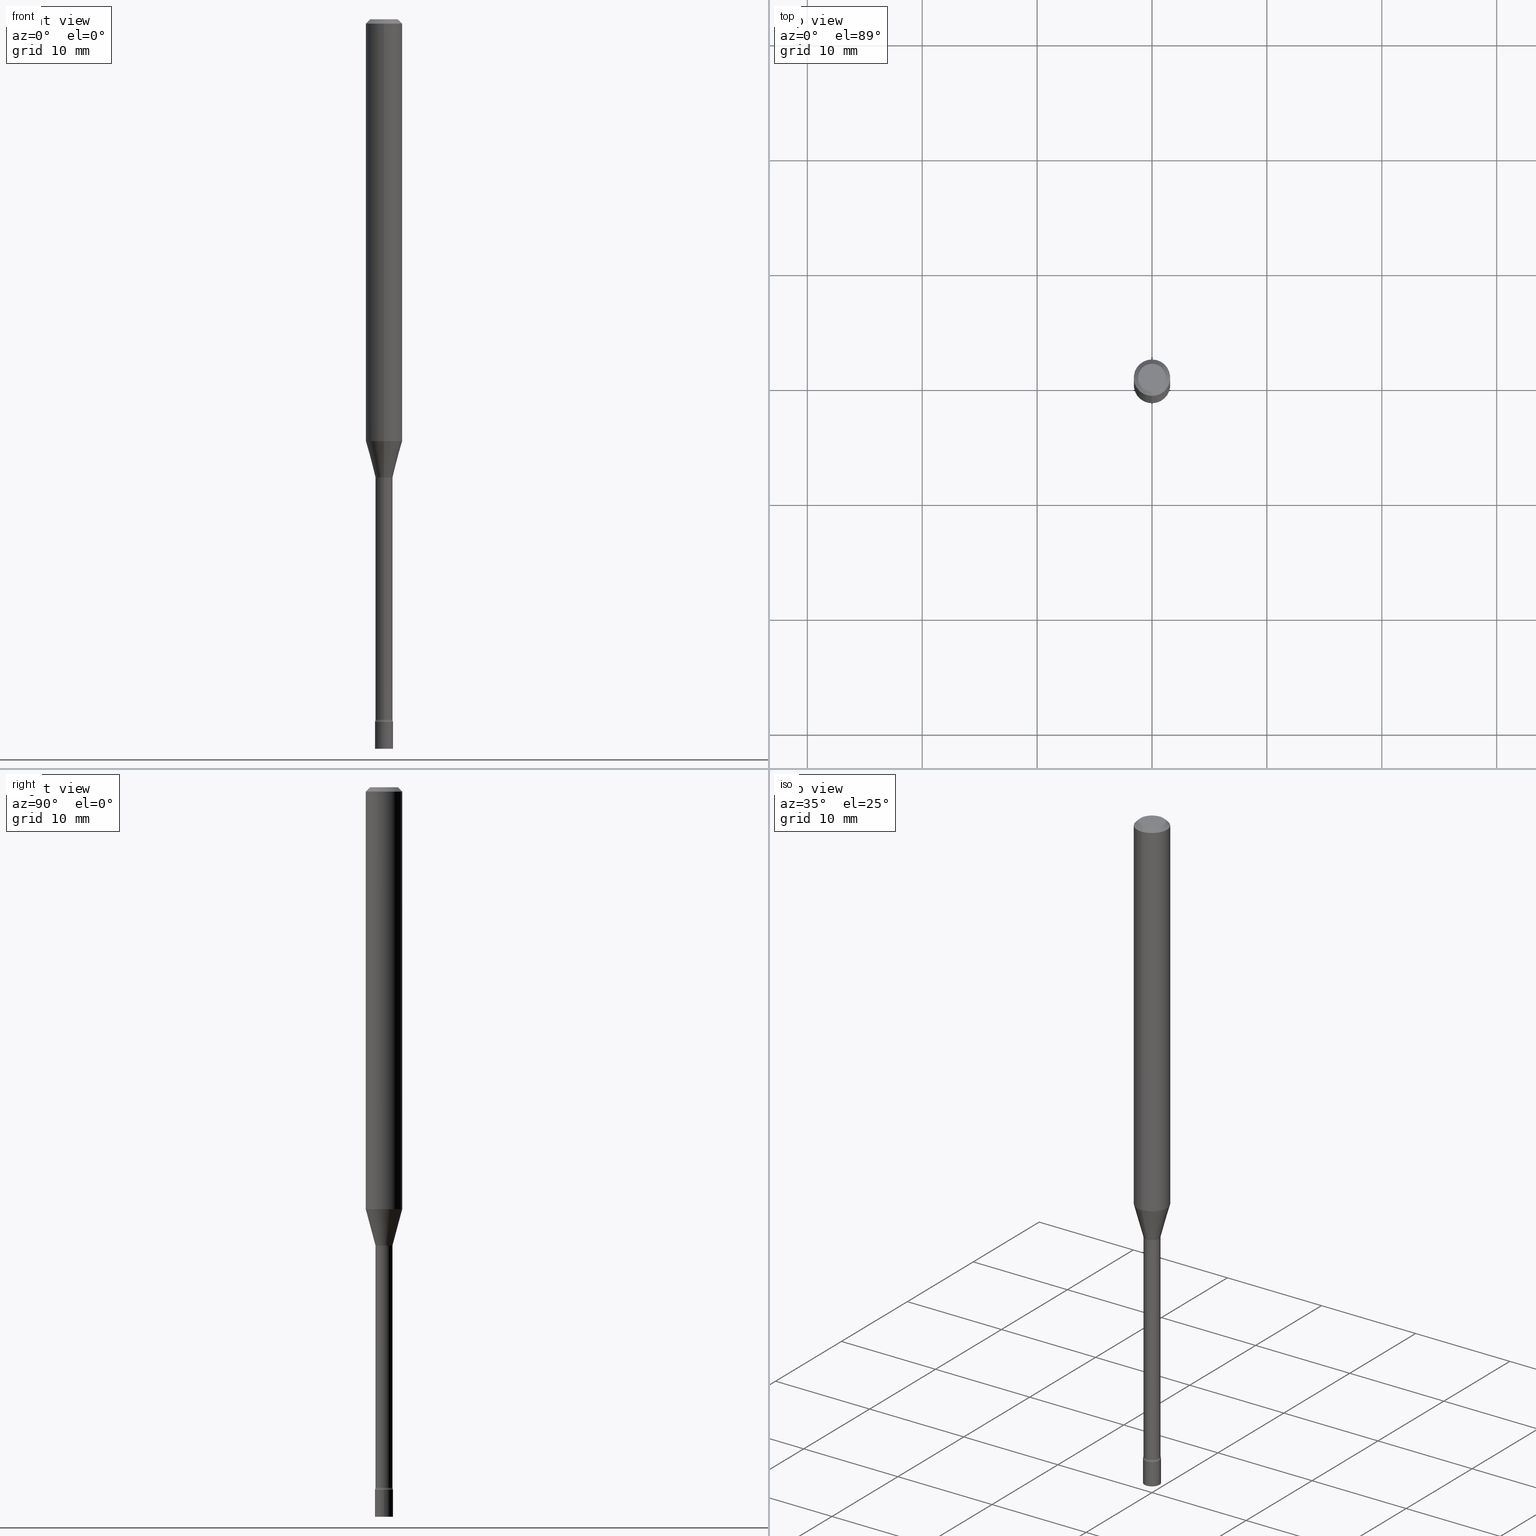
[diagram: canonical four-view strip — front | top / right | iso, engineering-drawing reading convention]
A machine part, canonical four-view strip (front | top / right | iso — engineering-drawing reading convention). The complete STEP part file that produces these views, byte-faithful:
ISO-10303-21;
HEADER;
FILE_DESCRIPTION (( 'STEP AP203' ),
    '1' );
FILE_NAME ('03629.STEP',
    '2024-03-08T22:13:02',
    ( '' ),
    ( '' ),
    'SwSTEP 2.0',
    'SolidWorks 2023',
    '' );
FILE_SCHEMA (( 'CONFIG_CONTROL_DESIGN' ));
ENDSEC;

DATA;
#1 = CARTESIAN_POINT ( 'NONE',  ( 4.440892098500625669E-16, 0.06250000000000000000, -2.182185064623508754E-16 ) ) ;
#2 = DIRECTION ( 'NONE',  ( -2.445458496151855897E-29, 3.491496103397614401E-15, 1.000000000000000000 ) ) ;
#3 = CYLINDRICAL_SURFACE ( 'NONE', #501, 0.03099999999999999978 ) ;
#4 = CIRCLE ( 'NONE', #493, 0.06250000000000000000 ) ;
#5 = TOROIDAL_SURFACE ( 'NONE', #70, 0.04415000000000000174, 0.01500000000000002373 ) ;
#6 = ADVANCED_FACE ( 'NONE', ( #284 ), #3, .T. ) ;
#7 = EDGE_LOOP ( 'NONE', ( #408, #164, #165, #506 ) ) ;
#8 = CYLINDRICAL_SURFACE ( 'NONE', #518, 0.02915000000000006128 ) ;
#9 = ADVANCED_FACE ( 'NONE', ( #402 ), #36, .T. ) ;
#10 = DIRECTION ( 'NONE',  ( 1.000000000000000000, -7.105427357601001070E-15, 4.926315689355726183E-29 ) ) ;
#11 = CYLINDRICAL_SURFACE ( 'NONE', #474, 0.06250000000000000000 ) ;
#12 = DIRECTION ( 'NONE',  ( 1.839019923739594793E-15, 0.2588190451025241812, 0.9659258262890673130 ) ) ;
#13 = CIRCLE ( 'NONE', #235, 0.06250000000000000000 ) ;
#14 = DIRECTION ( 'NONE',  ( -2.445468806185136597E-29, 3.491481338843145583E-15, 1.000000000000000000 ) ) ;
#15 = APPROVAL_PERSON_ORGANIZATION ( #67, #469, #507 ) ;
#16 = CARTESIAN_POINT ( 'NONE',  ( 2.071232074741282125E-16, 0.02914999999999451016, -1.571974787463811030 ) ) ;
#17 = CARTESIAN_POINT ( 'NONE',  ( 5.886218600237516879E-29, -8.404031120878058202E-15, -2.407000000000000028 ) ) ;
#18 = EDGE_CURVE ( 'NONE', #111, #105, #350, .T. ) ;
#19 = VERTEX_POINT ( 'NONE', #245 ) ;
#20 = AXIS2_PLACEMENT_3D ( 'NONE', #291, #370, #448 ) ;
#21 = ORIENTED_EDGE ( 'NONE', *, *, #353, .F. ) ;
#22 = SECURITY_CLASSIFICATION ( '', '', #460 ) ;
#23 = PERSON_AND_ORGANIZATION ( #450, #159 ) ;
#24 = ORIENTED_EDGE ( 'NONE', *, *, #491, .T. ) ;
#25 = APPLICATION_PROTOCOL_DEFINITION ( 'international standard', 'config_control_design', 1994, #143 ) ;
#26 = ORIENTED_EDGE ( 'NONE', *, *, #344, .F. ) ;
#27 = ADVANCED_FACE ( 'NONE', ( #155 ), #358, .T. ) ;
#28 = ORIENTED_EDGE ( 'NONE', *, *, #344, .T. ) ;
#29 = APPROVAL_DATE_TIME ( #188, #469 ) ;
#30 = VECTOR ( 'NONE', #213, 39.37007874015748143 ) ;
#31 = EDGE_LOOP ( 'NONE', ( #101, #186, #72, #152 ) ) ;
#32 = EDGE_LOOP ( 'NONE', ( #404, #24, #238, #202 ) ) ;
#33 = ORIENTED_EDGE ( 'NONE', *, *, #179, .T. ) ;
#34 = ORIENTED_EDGE ( 'NONE', *, *, #391, .T. ) ;
#35 = ORIENTED_EDGE ( 'NONE', *, *, #401, .T. ) ;
#36 = CYLINDRICAL_SURFACE ( 'NONE', #436, 0.03099999999999999978 ) ;
#37 = VECTOR ( 'NONE', #172, 39.37007874015748143 ) ;
#38 = VERTEX_POINT ( 'NONE', #486 ) ;
#39 = DIRECTION ( 'NONE',  ( -6.982962677686265922E-15, -1.000000000000000000, 0.000000000000000000 ) ) ;
#40 = EDGE_LOOP ( 'NONE', ( #21, #296, #447, #461 ) ) ;
#41 = PLANE ( 'NONE',  #248 ) ;
#42 = CC_DESIGN_DATE_AND_TIME_ASSIGNMENT ( #509, #229, ( #22 ) ) ;
#43 = DESIGN_CONTEXT ( 'detailed design', #336, 'design' ) ;
#44 = EDGE_CURVE ( 'NONE', #438, #299, #405, .T. ) ;
#45 = AXIS2_PLACEMENT_3D ( 'NONE', #476, #197, #39 ) ;
#46 = AXIS2_PLACEMENT_3D ( 'NONE', #163, #398, #209 ) ;
#47 = PRODUCT_DEFINITION ( 'UNKNOWN', '', #184, #43 ) ;
#48 = CARTESIAN_POINT ( 'NONE',  ( 5.886243416487624138E-29, -8.403995582595451079E-15, -2.407000000000000028 ) ) ;
#49 = EDGE_LOOP ( 'NONE', ( #82, #307 ) ) ;
#50 = DIRECTION ( 'NONE',  ( -2.445458496151855897E-29, 3.491496103397614401E-15, 1.000000000000000000 ) ) ;
#51 = CARTESIAN_POINT ( 'NONE',  ( -2.071224423039628932E-16, -0.02966111260566946239, -1.568092501787273108 ) ) ;
#52 = CARTESIAN_POINT ( 'NONE',  ( 0.03099999999999999978, -8.945175190116139274E-15, -2.500000000000000000 ) ) ;
#53 = CARTESIAN_POINT ( 'NONE',  ( 2.107548809652071189E-16, 0.02966111260565850935, -1.568092501787273108 ) ) ;
#54 = CARTESIAN_POINT ( 'NONE',  ( -3.082978022198102159E-16, -0.04415000000000549041, -1.571974787463810586 ) ) ;
#55 = ADVANCED_BREP_SHAPE_REPRESENTATION ( '03629', ( #246, #407, #298 ), #377 ) ;
#56 = DIRECTION ( 'NONE',  ( -2.445468806185136877E-29, 3.491481338843145188E-15, 1.000000000000000000 ) ) ;
#57 = AXIS2_PLACEMENT_3D ( 'NONE', #112, #120, #116 ) ;
#58 = CIRCLE ( 'NONE', #262, 0.02914999999999999883 ) ;
#59 = DIRECTION ( 'NONE',  ( -2.445458496151855897E-29, 3.491496103397614401E-15, 1.000000000000000000 ) ) ;
#60 = DIRECTION ( 'NONE',  ( -6.982962677686265133E-15, -1.000000000000000000, 0.000000000000000000 ) ) ;
#61 = ORIENTED_EDGE ( 'NONE', *, *, #273, .F. ) ;
#62 = ADVANCED_FACE ( 'NONE', ( #243 ), #41, .T. ) ;
#63 = DIRECTION ( 'NONE',  ( -2.445458496151855897E-29, 3.491496103397614401E-15, 1.000000000000000000 ) ) ;
#64 = EDGE_CURVE ( 'NONE', #271, #438, #279, .T. ) ;
#65 = EDGE_CURVE ( 'NONE', #346, #105, #394, .T. ) ;
#66 = CARTESIAN_POINT ( 'NONE',  ( 3.844215306852259404E-29, -5.488520635561816655E-15, -1.571974787463811030 ) ) ;
#67 = PERSON_AND_ORGANIZATION ( #450, #159 ) ;
#68 = DIRECTION ( 'NONE',  ( -2.445458496151855897E-29, 3.491496103397614401E-15, 1.000000000000000000 ) ) ;
#69 = CARTESIAN_POINT ( 'NONE',  ( 5.886218600237516879E-29, -8.404031120878058202E-15, -2.407000000000000028 ) ) ;
#70 = AXIS2_PLACEMENT_3D ( 'NONE', #171, #89, #91 ) ;
#71 = ORIENTED_EDGE ( 'NONE', *, *, #80, .F. ) ;
#72 = ORIENTED_EDGE ( 'NONE', *, *, #467, .F. ) ;
#73 = DIRECTION ( 'NONE',  ( -2.445458496151855897E-29, 3.491496103397614007E-15, 1.000000000000000000 ) ) ;
#74 = FACE_OUTER_BOUND ( 'NONE', #40, .T. ) ;
#75 = DIRECTION ( 'NONE',  ( -2.445458496151855897E-29, 3.491496103397614401E-15, 1.000000000000000000 ) ) ;
#76 = DIRECTION ( 'NONE',  ( -2.445458496151855897E-29, 3.491496103397614401E-15, 1.000000000000000000 ) ) ;
#77 = CLOSED_SHELL ( 'NONE', ( #9, #198, #6, #62 ) ) ;
#78 = VERTEX_POINT ( 'NONE', #51 ) ;
#79 = CIRCLE ( 'NONE', #323, 0.04749999999999999362 ) ;
#80 = EDGE_CURVE ( 'NONE', #239, #477, #181, .T. ) ;
#81 = CARTESIAN_POINT ( 'NONE',  ( -4.364351673553916201E-16, -0.06250000000000000000, 2.182185064623508754E-16 ) ) ;
#82 = ORIENTED_EDGE ( 'NONE', *, *, #483, .T. ) ;
#83 = EDGE_LOOP ( 'NONE', ( #380, #393 ) ) ;
#84 = ADVANCED_FACE ( 'NONE', ( #168 ), #200, .T. ) ;
#85 = AXIS2_PLACEMENT_3D ( 'NONE', #490, #241, #108 ) ;
#86 = AXIS2_PLACEMENT_3D ( 'NONE', #417, #261, #60 ) ;
#87 = ORIENTED_EDGE ( 'NONE', *, *, #432, .F. ) ;
#88 = CARTESIAN_POINT ( 'NONE',  ( 3.834705131247706668E-29, -5.474988859757280570E-15, -1.568092501787273108 ) ) ;
#89 = DIRECTION ( 'NONE',  ( -2.445458496151855897E-29, 3.491496103397614401E-15, 1.000000000000000000 ) ) ;
#90 = FACE_OUTER_BOUND ( 'NONE', #124, .T. ) ;
#91 = DIRECTION ( 'NONE',  ( -6.982962677686265922E-15, -1.000000000000000000, 3.491496103397614007E-15 ) ) ;
#92 = DIRECTION ( 'NONE',  ( -2.445458496151855897E-29, 3.491496103397614401E-15, 1.000000000000000000 ) ) ;
#93 = DIRECTION ( 'NONE',  ( -1.000000000000000000, 6.982962677686265922E-15, -4.883557194083112901E-29 ) ) ;
#94 = CONICAL_SURFACE ( 'NONE', #375, 0.06250000000000000000, 0.7853981633974483900 ) ;
#95 = AXIS2_PLACEMENT_3D ( 'NONE', #378, #374, #219 ) ;
#96 = CARTESIAN_POINT ( 'NONE',  ( -2.035533620545550815E-16, -0.02915000000000006128, 1.017771114140406686E-16 ) ) ;
#97 = COORDINATED_UNIVERSAL_TIME_OFFSET ( 5, 0, .BEHIND. ) ;
#98 = EDGE_LOOP ( 'NONE', ( #440, #519, #199, #387 ) ) ;
#99 = CC_DESIGN_PERSON_AND_ORGANIZATION_ASSIGNMENT ( #302, #180, ( #47 ) ) ;
#100 = SHAPE_DEFINITION_REPRESENTATION ( #395, #55 ) ;
#101 = ORIENTED_EDGE ( 'NONE', *, *, #396, .T. ) ;
#102 = CIRCLE ( 'NONE', #283, 0.03099999999999999978 ) ;
#103 = PERSON_AND_ORGANIZATION_ROLE ( 'classification_officer' ) ;
#104 = ORIENTED_EDGE ( 'NONE', *, *, #338, .F. ) ;
#105 = VERTEX_POINT ( 'NONE', #354 ) ;
#106 = APPROVAL_STATUS ( 'not_yet_approved' ) ;
#107 = DIRECTION ( 'NONE',  ( -2.445458496151855897E-29, 3.491496103397614401E-15, 1.000000000000000000 ) ) ;
#108 = DIRECTION ( 'NONE',  ( 6.982962677686265922E-15, 1.000000000000000000, -3.483106191921935554E-15 ) ) ;
#109 = ADVANCED_FACE ( 'NONE', ( #312 ), #94, .T. ) ;
#110 = CYLINDRICAL_SURFACE ( 'NONE', #511, 0.06250000000000000000 ) ;
#111 = VERTEX_POINT ( 'NONE', #406 ) ;
#112 = CARTESIAN_POINT ( 'NONE',  ( 5.886243416487624138E-29, -8.403995582595451079E-15, -2.407000000000000028 ) ) ;
#113 = CARTESIAN_POINT ( 'NONE',  ( 0.000000000000000000, 0.000000000000000000, 0.000000000000000000 ) ) ;
#114 = DIRECTION ( 'NONE',  ( -2.445458496151855897E-29, 3.491496103397614401E-15, 1.000000000000000000 ) ) ;
#115 = EDGE_CURVE ( 'NONE', #195, #271, #4, .T. ) ;
#116 = DIRECTION ( 'NONE',  ( 1.000000000000000000, -6.982962677686270655E-15, 0.000000000000000000 ) ) ;
#117 = ADVANCED_FACE ( 'NONE', ( #309 ), #110, .T. ) ;
#118 = VECTOR ( 'NONE', #56, 39.37007874015748143 ) ;
#119 = AXIS2_PLACEMENT_3D ( 'NONE', #54, #93, #335 ) ;
#120 = DIRECTION ( 'NONE',  ( -2.445468806185136597E-29, 3.491481338843145583E-15, 1.000000000000000000 ) ) ;
#121 = AXIS2_PLACEMENT_3D ( 'NONE', #317, #75, #454 ) ;
#122 = CARTESIAN_POINT ( 'NONE',  ( 4.440892098500977205E-16, 0.06249999999999492767, -1.445536105567578167 ) ) ;
#123 = CC_DESIGN_SECURITY_CLASSIFICATION ( #22, ( #184 ) ) ;
#124 = EDGE_LOOP ( 'NONE', ( #87, #431 ) ) ;
#125 = DIRECTION ( 'NONE',  ( -6.982962677686265922E-15, -1.000000000000000000, 4.370956789862821150E-15 ) ) ;
#126 = CARTESIAN_POINT ( 'NONE',  ( 3.534998550854499363E-29, -5.047083679909760712E-15, -1.445536105567577945 ) ) ;
#127 = DIRECTION ( 'NONE',  ( -6.982962677686265922E-15, -1.000000000000000000, 3.483106191921935554E-15 ) ) ;
#128 = VECTOR ( 'NONE', #134, 39.37007874015748143 ) ;
#129 = ORIENTED_EDGE ( 'NONE', *, *, #80, .T. ) ;
#130 = LOCAL_TIME ( 17, 13, 2.000000000000000000, #97 ) ;
#131 = LINE ( 'NONE', #176, #289 ) ;
#132 = DIRECTION ( 'NONE',  ( -2.445458496151855897E-29, 3.491496103397614401E-15, 1.000000000000000000 ) ) ;
#133 = DIRECTION ( 'NONE',  ( 1.000000000000000000, -7.105427357601001070E-15, 4.926315689355726183E-29 ) ) ;
#134 = DIRECTION ( 'NONE',  ( -2.445458496151855897E-29, 3.491496103397614007E-15, 1.000000000000000000 ) ) ;
#135 = LINE ( 'NONE', #96, #174 ) ;
#136 = DIRECTION ( 'NONE',  ( 1.000000000000000000, -6.982962677686270655E-15, 0.000000000000000000 ) ) ;
#137 = DIRECTION ( 'NONE',  ( -2.445458496151855897E-29, 3.491496103397614401E-15, 1.000000000000000000 ) ) ;
#138 = EDGE_CURVE ( 'NONE', #242, #170, #135, .T. ) ;
#139 = CIRCLE ( 'NONE', #430, 0.06250000000000000000 ) ;
#140 = ADVANCED_FACE ( 'NONE', ( #264 ), #220, .T. ) ;
#141 = PERSON_AND_ORGANIZATION ( #450, #159 ) ;
#142 = LINE ( 'NONE', #196, #495 ) ;
#143 = APPLICATION_CONTEXT ( 'configuration controlled 3d designs of mechanical parts and assemblies' ) ;
#144 = DATE_TIME_ROLE ( 'creation_date' ) ;
#145 = EDGE_LOOP ( 'NONE', ( #71, #459, #473, #230 ) ) ;
#146 = FACE_OUTER_BOUND ( 'NONE', #366, .T. ) ;
#147 = PERSON_AND_ORGANIZATION_ROLE ( 'creator' ) ;
#148 = CIRCLE ( 'NONE', #86, 0.02915000000000012720 ) ;
#149 = PERSON_AND_ORGANIZATION ( #450, #159 ) ;
#150 = ORIENTED_EDGE ( 'NONE', *, *, #512, .T. ) ;
#151 = DIRECTION ( 'NONE',  ( -6.982962677686265922E-15, -1.000000000000000000, 4.370956789862821150E-15 ) ) ;
#152 = ORIENTED_EDGE ( 'NONE', *, *, #65, .F. ) ;
#153 = APPROVAL ( #106, 'UNSPECIFIED' ) ;
#154 = EDGE_CURVE ( 'NONE', #516, #38, #331, .T. ) ;
#155 = FACE_OUTER_BOUND ( 'NONE', #32, .T. ) ;
#156 = CARTESIAN_POINT ( 'NONE',  ( 3.844199099739884015E-29, -5.488543845069189352E-15, -1.571974787463811030 ) ) ;
#157 = AXIS2_PLACEMENT_3D ( 'NONE', #452, #465, #427 ) ;
#158 = ADVANCED_FACE ( 'NONE', ( #413 ), #259, .F. ) ;
#159 = ORGANIZATION ( 'UNSPECIFIED', 'UNSPECIFIED', '' ) ;
#160 = ORIENTED_EDGE ( 'NONE', *, *, #483, .F. ) ;
#161 = ORIENTED_EDGE ( 'NONE', *, *, #396, .F. ) ;
#162 = AXIS2_PLACEMENT_3D ( 'NONE', #416, #59, #221 ) ;
#163 = CARTESIAN_POINT ( 'NONE',  ( 5.886243416487624138E-29, -8.403995582595451079E-15, -2.407000000000000028 ) ) ;
#164 = ORIENTED_EDGE ( 'NONE', *, *, #287, .T. ) ;
#165 = ORIENTED_EDGE ( 'NONE', *, *, #65, .T. ) ;
#166 = FACE_OUTER_BOUND ( 'NONE', #83, .T. ) ;
#167 = EDGE_LOOP ( 'NONE', ( #61, #160, #301, #352 ) ) ;
#168 = FACE_OUTER_BOUND ( 'NONE', #173, .T. ) ;
#169 = CARTESIAN_POINT ( 'NONE',  ( -2.035533620544968290E-16, -0.02915000000000850591, -2.399783525791635341 ) ) ;
#170 = VERTEX_POINT ( 'NONE', #410 ) ;
#171 = CARTESIAN_POINT ( 'NONE',  ( 3.844215306852259404E-29, -5.488520635561816655E-15, -1.571974787463811030 ) ) ;
#172 = DIRECTION ( 'NONE',  ( -2.445468806185136877E-29, 3.491481338843145188E-15, 1.000000000000000000 ) ) ;
#173 = EDGE_LOOP ( 'NONE', ( #282, #434, #204, #510 ) ) ;
#174 = VECTOR ( 'NONE', #330, 39.37007874015748143 ) ;
#175 = CIRCLE ( 'NONE', #228, 0.03099999999999999978 ) ;
#176 = CARTESIAN_POINT ( 'NONE',  ( -2.071224423039628932E-16, -0.02966111260566946239, -1.568092501787273108 ) ) ;
#177 = EDGE_CURVE ( 'NONE', #19, #111, #415, .T. ) ;
#178 = DIRECTION ( 'NONE',  ( -6.982962677686265922E-15, -1.000000000000000000, 0.000000000000000000 ) ) ;
#179 = EDGE_CURVE ( 'NONE', #239, #195, #256, .T. ) ;
#180 = PERSON_AND_ORGANIZATION_ROLE ( 'creator' ) ;
#181 = CIRCLE ( 'NONE', #315, 0.01500000000000002720 ) ;
#182 = AXIS2_PLACEMENT_3D ( 'NONE', #88, #107, #384 ) ;
#183 = DIRECTION ( 'NONE',  ( -2.445458496151855897E-29, 3.491496103397614401E-15, 1.000000000000000000 ) ) ;
#184 = PRODUCT_DEFINITION_FORMATION_WITH_SPECIFIED_SOURCE ( 'ANY', '', #274, .NOT_KNOWN. ) ;
#185 = COORDINATED_UNIVERSAL_TIME_OFFSET ( 5, 0, .BEHIND. ) ;
#186 = ORIENTED_EDGE ( 'NONE', *, *, #177, .T. ) ;
#187 = PERSON_AND_ORGANIZATION ( #450, #159 ) ;
#188 = DATE_AND_TIME ( #306, #324 ) ;
#189 = ORIENTED_EDGE ( 'NONE', *, *, #391, .F. ) ;
#190 = APPROVAL_PERSON_ORGANIZATION ( #149, #153, #458 ) ;
#191 = DIRECTION ( 'NONE',  ( -2.445458496151855897E-29, 3.491496103397614401E-15, 1.000000000000000000 ) ) ;
#192 = CARTESIAN_POINT ( 'NONE',  ( 2.202682480856897769E-16, 0.03099999999999158290, -2.407000000000000473 ) ) ;
#193 = UNCERTAINTY_MEASURE_WITH_UNIT (LENGTH_MEASURE( 1.000000000000000082E-05 ), #513, 'distance_accuracy_value', 'NONE');
#194 = ADVANCED_FACE ( 'NONE', ( #146 ), #502, .F. ) ;
#195 = VERTEX_POINT ( 'NONE', #122 ) ;
#196 = CARTESIAN_POINT ( 'NONE',  ( -4.287811248607203282E-16, -0.06250000000000005551, -0.01499999999999981209 ) ) ;
#197 = DIRECTION ( 'NONE',  ( -2.445458496151855897E-29, 3.491496103397614401E-15, 1.000000000000000000 ) ) ;
#198 = ADVANCED_FACE ( 'NONE', ( #166 ), #369, .T. ) ;
#199 = ORIENTED_EDGE ( 'NONE', *, *, #64, .T. ) ;
#200 = CONICAL_SURFACE ( 'NONE', #85, 0.06250000000000000000, 0.7853981633974483900 ) ;
#201 = CIRCLE ( 'NONE', #95, 0.02915000000000012720 ) ;
#202 = ORIENTED_EDGE ( 'NONE', *, *, #115, .F. ) ;
#203 = DIRECTION ( 'NONE',  ( -2.445468806185136597E-29, 3.491481338843145583E-15, 1.000000000000000000 ) ) ;
#204 = ORIENTED_EDGE ( 'NONE', *, *, #44, .T. ) ;
#205 = ORIENTED_EDGE ( 'NONE', *, *, #64, .F. ) ;
#206 = DIRECTION ( 'NONE',  ( -6.982962677686265922E-15, -1.000000000000000000, 3.483106191921935554E-15 ) ) ;
#207 =( LENGTH_UNIT ( ) NAMED_UNIT ( * ) SI_UNIT ( $, .METRE. ) );
#208 = ORIENTED_EDGE ( 'NONE', *, *, #138, .F. ) ;
#209 = DIRECTION ( 'NONE',  ( 1.000000000000000000, -6.982962677686265922E-15, 4.876176775795935793E-29 ) ) ;
#210 = ORIENTED_EDGE ( 'NONE', *, *, #432, .T. ) ;
#211 = ADVANCED_FACE ( 'NONE', ( #364 ), #8, .T. ) ;
#212 = AXIS2_PLACEMENT_3D ( 'NONE', #156, #76, #399 ) ;
#213 = DIRECTION ( 'NONE',  ( 4.937700262164548042E-15, 0.7071067811865451302, -0.7071067811865499042 ) ) ;
#214 = DIRECTION ( 'NONE',  ( -6.982962677686265922E-15, -1.000000000000000000, 3.491496103397614007E-15 ) ) ;
#215 = EDGE_LOOP ( 'NONE', ( #224, #28, #35, #104 ) ) ;
#216 = CARTESIAN_POINT ( 'NONE',  ( 2.136957277799092535E-16, 0.02914999999999174848, -2.399783525791635341 ) ) ;
#217 = ADVANCED_FACE ( 'NONE', ( #74 ), #360, .T. ) ;
#218 = LINE ( 'NONE', #372, #128 ) ;
#219 = DIRECTION ( 'NONE',  ( -6.982962677686265133E-15, -1.000000000000000000, 0.000000000000000000 ) ) ;
#220 = CONICAL_SURFACE ( 'NONE', #437, 0.02966111260566398414, 0.2617993877991495189 ) ;
#221 = DIRECTION ( 'NONE',  ( -6.982962677686265922E-15, -1.000000000000000000, 0.000000000000000000 ) ) ;
#222 = CARTESIAN_POINT ( 'NONE',  ( 3.844199099739884015E-29, -5.488543845069189352E-15, -1.571974787463811030 ) ) ;
#223 = CARTESIAN_POINT ( 'NONE',  ( 3.274220454076525799E-16, 0.02966111260565850935, -1.568092501787273108 ) ) ;
#224 = ORIENTED_EDGE ( 'NONE', *, *, #365, .F. ) ;
#225 = ORIENTED_EDGE ( 'NONE', *, *, #456, .T. ) ;
#226 = CARTESIAN_POINT ( 'NONE',  ( 7.070605409553981819E-46, -1.009503586953815446E-31, -2.891320961153174510E-17 ) ) ;
#227 = CALENDAR_DATE ( 2024, 8, 3 ) ;
#228 = AXIS2_PLACEMENT_3D ( 'NONE', #48, #445, #294 ) ;
#229 = DATE_TIME_ROLE ( 'classification_date' ) ;
#230 = ORIENTED_EDGE ( 'NONE', *, *, #379, .T. ) ;
#231 = PERSON_AND_ORGANIZATION ( #450, #159 ) ;
#232 = DIRECTION ( 'NONE',  ( 6.982962677686265922E-15, 1.000000000000000000, -3.483106191921935554E-15 ) ) ;
#233 = APPROVAL ( #339, 'UNSPECIFIED' ) ;
#234 = CARTESIAN_POINT ( 'NONE',  ( -4.364351673553912750E-16, -0.06250000000000005551, -0.01499999999999981209 ) ) ;
#235 = AXIS2_PLACEMENT_3D ( 'NONE', #327, #489, #125 ) ;
#236 = MECHANICAL_CONTEXT ( 'NONE', #143, 'mechanical' ) ;
#237 = CARTESIAN_POINT ( 'NONE',  ( -4.364351673553564172E-16, -0.06250000000000507927, -1.445536105567577723 ) ) ;
#238 = ORIENTED_EDGE ( 'NONE', *, *, #326, .T. ) ;
#239 = VERTEX_POINT ( 'NONE', #223 ) ;
#240 = CC_DESIGN_PERSON_AND_ORGANIZATION_ASSIGNMENT ( #187, #392, ( #274 ) ) ;
#241 = DIRECTION ( 'NONE',  ( 2.445458496151855897E-29, -3.491496103397614401E-15, -1.000000000000000000 ) ) ;
#242 = VERTEX_POINT ( 'NONE', #169 ) ;
#243 = FACE_OUTER_BOUND ( 'NONE', #281, .T. ) ;
#244 = CIRCLE ( 'NONE', #316, 0.01499999999999996822 ) ;
#245 = CARTESIAN_POINT ( 'NONE',  ( -0.03099999999999999978, -8.346081216766027547E-15, -2.500000000000000000 ) ) ;
#246 = MANIFOLD_SOLID_BREP ( 'Body-Move/Copy2[1]', #77 ) ;
#247 = ADVANCED_FACE ( 'NONE', ( #446 ), #359, .F. ) ;
#248 = AXIS2_PLACEMENT_3D ( 'NONE', #403, #314, #439 ) ;
#249 = CIRCLE ( 'NONE', #20, 0.01499999999999996822 ) ;
#250 = APPROVAL_PERSON_ORGANIZATION ( #231, #233, #503 ) ;
#251 = DIMENSIONAL_EXPONENTS ( 1.000000000000000000, 0.000000000000000000, 0.000000000000000000, 0.000000000000000000, 0.000000000000000000, 0.000000000000000000, 0.000000000000000000 ) ;
#252 = EDGE_CURVE ( 'NONE', #78, #239, #481, .T. ) ;
#253 = FACE_OUTER_BOUND ( 'NONE', #98, .T. ) ;
#254 = DIRECTION ( 'NONE',  ( 6.982962677686265922E-15, 1.000000000000000000, -3.491496103397614007E-15 ) ) ;
#255 = DIRECTION ( 'NONE',  ( -6.982962677686265922E-15, -1.000000000000000000, 3.491496103397614007E-15 ) ) ;
#256 = LINE ( 'NONE', #53, #367 ) ;
#257 = PLANE ( 'NONE',  #157 ) ;
#258 = CARTESIAN_POINT ( 'NONE',  ( 6.113672015462842613E-29, -8.728703347107864943E-15, -2.500000000000000000 ) ) ;
#259 = PLANE ( 'NONE',  #278 ) ;
#260 = DIRECTION ( 'NONE',  ( -6.982962677686266711E-15, -1.000000000000000000, 3.491496103397614401E-15 ) ) ;
#261 = DIRECTION ( 'NONE',  ( -2.445458496151855897E-29, 3.491496103397614401E-15, 1.000000000000000000 ) ) ;
#262 = AXIS2_PLACEMENT_3D ( 'NONE', #222, #500, #499 ) ;
#263 = DIRECTION ( 'NONE',  ( -6.982962677686265922E-15, -1.000000000000000000, 3.491496103397614007E-15 ) ) ;
#264 = FACE_OUTER_BOUND ( 'NONE', #475, .T. ) ;
#265 = COORDINATED_UNIVERSAL_TIME_OFFSET ( 5, 0, .BEHIND. ) ;
#266 = VERTEX_POINT ( 'NONE', #268 ) ;
#267 = CC_DESIGN_PERSON_AND_ORGANIZATION_ASSIGNMENT ( #141, #348, ( #184 ) ) ;
#268 = CARTESIAN_POINT ( 'NONE',  ( -2.164718430082152898E-16, -0.03100000000000839237, -2.406999999999999584 ) ) ;
#269 = TOROIDAL_SURFACE ( 'NONE', #462, 0.04415000000000009195, 0.01499999999999996822 ) ;
#270 = APPLICATION_PROTOCOL_DEFINITION ( 'international standard', 'config_control_design', 1994, #336 ) ;
#271 = VERTEX_POINT ( 'NONE', #237 ) ;
#272 = CALENDAR_DATE ( 2024, 8, 3 ) ;
#273 = EDGE_CURVE ( 'NONE', #516, #438, #142, .T. ) ;
#274 = PRODUCT ( '03629', '03629', '', ( #236 ) ) ;
#275 = COORDINATED_UNIVERSAL_TIME_OFFSET ( 5, 0, .BEHIND. ) ;
#276 = ADVANCED_FACE ( 'NONE', ( #310 ), #5, .F. ) ;
#277 = DIRECTION ( 'NONE',  ( -2.445458496151855897E-29, 3.491496103397614401E-15, 1.000000000000000000 ) ) ;
#278 = AXIS2_PLACEMENT_3D ( 'NONE', #505, #443, #254 ) ;
#279 = LINE ( 'NONE', #81, #322 ) ;
#280 = DIRECTION ( 'NONE',  ( -2.445458496151855897E-29, 3.491496103397614401E-15, 1.000000000000000000 ) ) ;
#281 = EDGE_LOOP ( 'NONE', ( #161, #340 ) ) ;
#282 = ORIENTED_EDGE ( 'NONE', *, *, #154, .F. ) ;
#283 = AXIS2_PLACEMENT_3D ( 'NONE', #258, #333, #409 ) ;
#284 = FACE_OUTER_BOUND ( 'NONE', #7, .T. ) ;
#285 = PRODUCT_RELATED_PRODUCT_CATEGORY ( 'detail', '', ( #274 ) ) ;
#286 = ORIENTED_EDGE ( 'NONE', *, *, #363, .F. ) ;
#287 = EDGE_CURVE ( 'NONE', #19, #346, #102, .T. ) ;
#288 = CLOSED_SHELL ( 'NONE', ( #194, #211, #247, #84, #117, #140, #27, #303, #109, #158, #421, #420, #217, #276 ) ) ;
#289 = VECTOR ( 'NONE', #293, 39.37007874015748854 ) ;
#290 = LOCAL_TIME ( 17, 13, 2.000000000000000000, #265 ) ;
#291 = CARTESIAN_POINT ( 'NONE',  ( -3.082978022197906423E-16, -0.04415000000000846719, -2.399783525791634897 ) ) ;
#292 = DIRECTION ( 'NONE',  ( 7.105427357600997914E-15, 1.000000000000000000, 0.000000000000000000 ) ) ;
#293 = DIRECTION ( 'NONE',  ( -1.807323732225324617E-15, -0.2588190451025174088, 0.9659258262890690894 ) ) ;
#294 = DIRECTION ( 'NONE',  ( 1.000000000000000000, -6.982962677686270655E-15, 0.000000000000000000 ) ) ;
#295 = CARTESIAN_POINT ( 'NONE',  ( 5.868595753920427457E-29, -8.378799397564702473E-15, -2.399783525791635341 ) ) ;
#296 = ORIENTED_EDGE ( 'NONE', *, *, #365, .T. ) ;
#297 = CIRCLE ( 'NONE', #385, 0.03099999999999999978 ) ;
#298 = AXIS2_PLACEMENT_3D ( 'NONE', #383, #428, #422 ) ;
#299 = VERTEX_POINT ( 'NONE', #329 ) ;
#300 = DATE_AND_TIME ( #386, #425 ) ;
#301 = ORIENTED_EDGE ( 'NONE', *, *, #442, .T. ) ;
#302 = PERSON_AND_ORGANIZATION ( #450, #159 ) ;
#303 = ADVANCED_FACE ( 'NONE', ( #253 ), #11, .T. ) ;
#304 = APPROVAL_STATUS ( 'not_yet_approved' ) ;
#305 = AXIS2_PLACEMENT_3D ( 'NONE', #414, #14, #136 ) ;
#306 = CALENDAR_DATE ( 2024, 8, 3 ) ;
#307 = ORIENTED_EDGE ( 'NONE', *, *, #154, .T. ) ;
#308 = PERSON_AND_ORGANIZATION ( #450, #159 ) ;
#309 = FACE_OUTER_BOUND ( 'NONE', #362, .T. ) ;
#310 = FACE_OUTER_BOUND ( 'NONE', #145, .T. ) ;
#311 =( NAMED_UNIT ( * ) PLANE_ANGLE_UNIT ( ) SI_UNIT ( $, .RADIAN. ) );
#312 = FACE_OUTER_BOUND ( 'NONE', #167, .T. ) ;
#313 = DIRECTION ( 'NONE',  ( -6.982962677686265922E-15, -1.000000000000000000, 0.000000000000000000 ) ) ;
#314 = DIRECTION ( 'NONE',  ( 2.438088387897960049E-29, -3.491481338843145188E-15, -1.000000000000000000 ) ) ;
#315 = AXIS2_PLACEMENT_3D ( 'NONE', #332, #133, #292 ) ;
#316 = AXIS2_PLACEMENT_3D ( 'NONE', #412, #10, #497 ) ;
#317 = CARTESIAN_POINT ( 'NONE',  ( 0.000000000000000000, 0.000000000000000000, 0.000000000000000000 ) ) ;
#318 = CARTESIAN_POINT ( 'NONE',  ( 0.000000000000000000, 0.000000000000000000, 0.000000000000000000 ) ) ;
#319 = DIRECTION ( 'NONE',  ( -2.445458496151855897E-29, 3.491496103397614007E-15, 1.000000000000000000 ) ) ;
#320 = VERTEX_POINT ( 'NONE', #216 ) ;
#321 = ORIENTED_EDGE ( 'NONE', *, *, #353, .T. ) ;
#322 = VECTOR ( 'NONE', #73, 39.37007874015748143 ) ;
#323 = AXIS2_PLACEMENT_3D ( 'NONE', #451, #92, #260 ) ;
#324 = LOCAL_TIME ( 17, 13, 2.000000000000000000, #185 ) ;
#325 = LENGTH_MEASURE_WITH_UNIT ( LENGTH_MEASURE( 0.02539999999999999897 ), #207 );
#326 = EDGE_CURVE ( 'NONE', #78, #271, #131, .T. ) ;
#327 = CARTESIAN_POINT ( 'NONE',  ( 3.534998550854499363E-29, -5.047083679909760712E-15, -1.445536105567577945 ) ) ;
#328 = DIRECTION ( 'NONE',  ( 2.445458496151855897E-29, -3.491496103397614401E-15, -1.000000000000000000 ) ) ;
#329 = CARTESIAN_POINT ( 'NONE',  ( 4.440892098500982135E-16, 0.06249999999999995837, -0.01500000000000024751 ) ) ;
#330 = DIRECTION ( 'NONE',  ( -2.445458496151855897E-29, 3.491496103397614007E-15, 1.000000000000000000 ) ) ;
#331 = CIRCLE ( 'NONE', #400, 0.04749999999999999362 ) ;
#332 = CARTESIAN_POINT ( 'NONE',  ( 3.137046178381226521E-16, 0.04414999999999451308, -1.571974787463811252 ) ) ;
#333 = DIRECTION ( 'NONE',  ( -2.445468806185136597E-29, 3.491481338843145583E-15, 1.000000000000000000 ) ) ;
#334 = ORIENTED_EDGE ( 'NONE', *, *, #496, .T. ) ;
#335 = DIRECTION ( 'NONE',  ( -6.982962677686263555E-15, -1.000000000000000000, 0.000000000000000000 ) ) ;
#336 = APPLICATION_CONTEXT ( 'configuration controlled 3d designs of mechanical parts and assemblies' ) ;
#337 = FACE_OUTER_BOUND ( 'NONE', #514, .T. ) ;
#338 = EDGE_CURVE ( 'NONE', #242, #266, #249, .T. ) ;
#339 = APPROVAL_STATUS ( 'not_yet_approved' ) ;
#340 = ORIENTED_EDGE ( 'NONE', *, *, #287, .F. ) ;
#341 = AXIS2_PLACEMENT_3D ( 'NONE', #411, #191, #464 ) ;
#342 = CC_DESIGN_APPROVAL ( #153, ( #22 ) ) ;
#343 = DIRECTION ( 'NONE',  ( -6.982962677686266711E-15, -1.000000000000000000, 3.491496103397614401E-15 ) ) ;
#344 = EDGE_CURVE ( 'NONE', #320, #441, #244, .T. ) ;
#345 = DATE_AND_TIME ( #272, #290 ) ;
#346 = VERTEX_POINT ( 'NONE', #52 ) ;
#347 = CALENDAR_DATE ( 2024, 8, 3 ) ;
#348 = PERSON_AND_ORGANIZATION_ROLE ( 'design_supplier' ) ;
#349 = AXIS2_PLACEMENT_3D ( 'NONE', #515, #114, #206 ) ;
#350 = CIRCLE ( 'NONE', #57, 0.03099999999999999978 ) ;
#351 = AXIS2_PLACEMENT_3D ( 'NONE', #66, #2, #214 ) ;
#352 = ORIENTED_EDGE ( 'NONE', *, *, #453, .T. ) ;
#353 = EDGE_CURVE ( 'NONE', #320, #477, #218, .T. ) ;
#354 = CARTESIAN_POINT ( 'NONE',  ( 0.03099999999999999978, -8.620467425603725410E-15, -2.407000000000000028 ) ) ;
#355 = DIRECTION ( 'NONE',  ( 1.000000000000000000, -6.982962677686266711E-15, 4.876176775795935232E-29 ) ) ;
#356 = DIRECTION ( 'NONE',  ( -2.445458496151855897E-29, 3.491496103397614401E-15, 1.000000000000000000 ) ) ;
#357 = EDGE_LOOP ( 'NONE', ( #34, #321, #472, #208 ) ) ;
#358 = CONICAL_SURFACE ( 'NONE', #45, 0.02966111260566398414, 0.2617993877991495189 ) ;
#359 = TOROIDAL_SURFACE ( 'NONE', #341, 0.04415000000000009195, 0.01499999999999996822 ) ;
#360 = CYLINDRICAL_SURFACE ( 'NONE', #121, 0.02915000000000006128 ) ;
#361 = LINE ( 'NONE', #1, #455 ) ;
#362 = EDGE_LOOP ( 'NONE', ( #225, #150, #388, #205 ) ) ;
#363 = EDGE_CURVE ( 'NONE', #78, #170, #419, .T. ) ;
#364 = FACE_OUTER_BOUND ( 'NONE', #357, .T. ) ;
#365 = EDGE_CURVE ( 'NONE', #320, #242, #148, .T. ) ;
#366 = EDGE_LOOP ( 'NONE', ( #508, #129, #334, #286 ) ) ;
#367 = VECTOR ( 'NONE', #12, 39.37007874015748854 ) ;
#368 = DIRECTION ( 'NONE',  ( -2.445458496151855897E-29, 3.491496103397614401E-15, 1.000000000000000000 ) ) ;
#369 = PLANE ( 'NONE',  #46 ) ;
#370 = DIRECTION ( 'NONE',  ( -1.000000000000000000, 6.982962677686265922E-15, -4.883557194083112901E-29 ) ) ;
#371 = CARTESIAN_POINT ( 'NONE',  ( -0.03099999999999999978, 2.202682480856310560E-16, -1.524869877979020612E-30 ) ) ;
#372 = CARTESIAN_POINT ( 'NONE',  ( 2.071232074740696149E-16, 0.02915000000000006128, -1.017771114140406686E-16 ) ) ;
#373 = DIRECTION ( 'NONE',  ( -6.982962677686265922E-15, -1.000000000000000000, 0.000000000000000000 ) ) ;
#374 = DIRECTION ( 'NONE',  ( -2.445458496151855897E-29, 3.491496103397614401E-15, 1.000000000000000000 ) ) ;
#375 = AXIS2_PLACEMENT_3D ( 'NONE', #470, #328, #232 ) ;
#376 = CIRCLE ( 'NONE', #212, 0.02914999999999999883 ) ;
#377 =( GEOMETRIC_REPRESENTATION_CONTEXT ( 3 ) GLOBAL_UNCERTAINTY_ASSIGNED_CONTEXT ( ( #193 ) ) GLOBAL_UNIT_ASSIGNED_CONTEXT ( ( #513, #311, #498 ) ) REPRESENTATION_CONTEXT ( 'NONE', 'WORKASPACE' ) );
#378 = CARTESIAN_POINT ( 'NONE',  ( 5.868571012072410138E-29, -8.378834829299282895E-15, -2.399783525791635341 ) ) ;
#379 = EDGE_CURVE ( 'NONE', #170, #477, #58, .T. ) ;
#380 = ORIENTED_EDGE ( 'NONE', *, *, #467, .T. ) ;
#381 = CC_DESIGN_DATE_AND_TIME_ASSIGNMENT ( #466, #144, ( #47 ) ) ;
#382 = CARTESIAN_POINT ( 'NONE',  ( 3.834705131247706668E-29, -5.474988859757280570E-15, -1.568092501787273108 ) ) ;
#383 = CARTESIAN_POINT ( 'NONE',  ( 0.000000000000000000, 0.000000000000000000, 0.000000000000000000 ) ) ;
#384 = DIRECTION ( 'NONE',  ( -6.982962677686265922E-15, -1.000000000000000000, 0.000000000000000000 ) ) ;
#385 = AXIS2_PLACEMENT_3D ( 'NONE', #17, #132, #178 ) ;
#386 = CALENDAR_DATE ( 2024, 8, 3 ) ;
#387 = ORIENTED_EDGE ( 'NONE', *, *, #453, .F. ) ;
#388 = ORIENTED_EDGE ( 'NONE', *, *, #44, .F. ) ;
#389 = CIRCLE ( 'NONE', #162, 0.02966111260566398414 ) ;
#390 = LOCAL_TIME ( 17, 13, 2.000000000000000000, #463 ) ;
#391 = EDGE_CURVE ( 'NONE', #242, #320, #201, .T. ) ;
#392 = PERSON_AND_ORGANIZATION_ROLE ( 'design_owner' ) ;
#393 = ORIENTED_EDGE ( 'NONE', *, *, #18, .T. ) ;
#394 = LINE ( 'NONE', #397, #118 ) ;
#395 = PRODUCT_DEFINITION_SHAPE ( 'NONE', 'NONE',  #47 ) ;
#396 = EDGE_CURVE ( 'NONE', #346, #19, #424, .T. ) ;
#397 = CARTESIAN_POINT ( 'NONE',  ( 0.03099999999999999978, -2.164718430082742572E-16, 1.511614800496739984E-30 ) ) ;
#398 = DIRECTION ( 'NONE',  ( -2.438088387897960049E-29, 3.491481338843145188E-15, 1.000000000000000000 ) ) ;
#399 = DIRECTION ( 'NONE',  ( -6.982962677686265922E-15, -1.000000000000000000, 0.000000000000000000 ) ) ;
#400 = AXIS2_PLACEMENT_3D ( 'NONE', #226, #183, #343 ) ;
#401 = EDGE_CURVE ( 'NONE', #441, #266, #297, .T. ) ;
#402 = FACE_OUTER_BOUND ( 'NONE', #31, .T. ) ;
#403 = CARTESIAN_POINT ( 'NONE',  ( 2.164718430083353692E-16, 0.03099999999999127065, -2.500000000000000000 ) ) ;
#404 = ORIENTED_EDGE ( 'NONE', *, *, #179, .F. ) ;
#405 = CIRCLE ( 'NONE', #349, 0.06250000000000000000 ) ;
#406 = CARTESIAN_POINT ( 'NONE',  ( -0.03099999999999999978, -8.346081216766027547E-15, -2.407000000000000028 ) ) ;
#407 = MANIFOLD_SOLID_BREP ( 'Body-Move/Copy2[2]', #288 ) ;
#408 = ORIENTED_EDGE ( 'NONE', *, *, #177, .F. ) ;
#409 = DIRECTION ( 'NONE',  ( 1.000000000000000000, -6.982962677686270655E-15, 0.000000000000000000 ) ) ;
#410 = CARTESIAN_POINT ( 'NONE',  ( -2.035533620545162301E-16, -0.02915000000000548749, -1.571974787463811030 ) ) ;
#411 = CARTESIAN_POINT ( 'NONE',  ( 5.868595753920427457E-29, -8.378799397564702473E-15, -2.399783525791635341 ) ) ;
#412 = CARTESIAN_POINT ( 'NONE',  ( 3.137046178381435076E-16, 0.04414999999999171670, -2.399783525791635341 ) ) ;
#413 = FACE_OUTER_BOUND ( 'NONE', #49, .T. ) ;
#414 = CARTESIAN_POINT ( 'NONE',  ( 6.113672015462842613E-29, -8.728703347107864943E-15, -2.500000000000000000 ) ) ;
#415 = LINE ( 'NONE', #371, #37 ) ;
#416 = CARTESIAN_POINT ( 'NONE',  ( 3.834705131247706668E-29, -5.474988859757280570E-15, -1.568092501787273108 ) ) ;
#417 = CARTESIAN_POINT ( 'NONE',  ( 5.868571012072410138E-29, -8.378834829299282895E-15, -2.399783525791635341 ) ) ;
#418 = CIRCLE ( 'NONE', #444, 0.03099999999999999978 ) ;
#419 = CIRCLE ( 'NONE', #119, 0.01500000000000002720 ) ;
#420 = ADVANCED_FACE ( 'NONE', ( #337 ), #269, .F. ) ;
#421 = ADVANCED_FACE ( 'NONE', ( #90 ), #257, .F. ) ;
#422 = DIRECTION ( 'NONE',  ( 1.000000000000000000, 0.000000000000000000, 0.000000000000000000 ) ) ;
#423 = ORIENTED_EDGE ( 'NONE', *, *, #326, .F. ) ;
#424 = CIRCLE ( 'NONE', #305, 0.03099999999999999978 ) ;
#425 = LOCAL_TIME ( 17, 13, 2.000000000000000000, #275 ) ;
#426 = APPROVAL_DATE_TIME ( #345, #153 ) ;
#427 = DIRECTION ( 'NONE',  ( -6.982962677686265922E-15, -1.000000000000000000, 3.491496103397614007E-15 ) ) ;
#428 = DIRECTION ( 'NONE',  ( 0.000000000000000000, 0.000000000000000000, 1.000000000000000000 ) ) ;
#429 = CC_DESIGN_PERSON_AND_ORGANIZATION_ASSIGNMENT ( #23, #103, ( #22 ) ) ;
#430 = AXIS2_PLACEMENT_3D ( 'NONE', #484, #368, #127 ) ;
#431 = ORIENTED_EDGE ( 'NONE', *, *, #401, .F. ) ;
#432 = EDGE_CURVE ( 'NONE', #266, #441, #418, .T. ) ;
#433 = DIRECTION ( 'NONE',  ( -6.982962677686265922E-15, -1.000000000000000000, 3.491496103397614401E-15 ) ) ;
#434 = ORIENTED_EDGE ( 'NONE', *, *, #273, .T. ) ;
#435 = CARTESIAN_POINT ( 'NONE',  ( 0.000000000000000000, 0.000000000000000000, 0.000000000000000000 ) ) ;
#436 = AXIS2_PLACEMENT_3D ( 'NONE', #318, #203, #478 ) ;
#437 = AXIS2_PLACEMENT_3D ( 'NONE', #382, #63, #373 ) ;
#438 = VERTEX_POINT ( 'NONE', #234 ) ;
#439 = DIRECTION ( 'NONE',  ( -1.000000000000000000, 6.982962677686265922E-15, -4.876176775795935793E-29 ) ) ;
#440 = ORIENTED_EDGE ( 'NONE', *, *, #512, .F. ) ;
#441 = VERTEX_POINT ( 'NONE', #192 ) ;
#442 = EDGE_CURVE ( 'NONE', #38, #299, #471, .T. ) ;
#443 = DIRECTION ( 'NONE',  ( 2.445458496151855617E-29, -3.491496103397614007E-15, -1.000000000000000000 ) ) ;
#444 = AXIS2_PLACEMENT_3D ( 'NONE', #69, #356, #313 ) ;
#445 = DIRECTION ( 'NONE',  ( -2.445468806185136597E-29, 3.491481338843145583E-15, 1.000000000000000000 ) ) ;
#446 = FACE_OUTER_BOUND ( 'NONE', #215, .T. ) ;
#447 = ORIENTED_EDGE ( 'NONE', *, *, #138, .T. ) ;
#448 = DIRECTION ( 'NONE',  ( -6.982962677686266711E-15, -1.000000000000000000, 0.000000000000000000 ) ) ;
#449 = DIRECTION ( 'NONE',  ( -6.982962677686265922E-15, -1.000000000000000000, 3.491496103397614401E-15 ) ) ;
#450 = PERSON ( 'UNSPECIFIED', 'UNSPECIFIED', 'UNSPECIFIED', ('UNSPECIFIED'), ('UNSPECIFIED'), ('UNSPECIFIED') ) ;
#451 = CARTESIAN_POINT ( 'NONE',  ( 7.070605409553981819E-46, -1.009503586953815446E-31, -2.891320961153174510E-17 ) ) ;
#452 = CARTESIAN_POINT ( 'NONE',  ( 2.164718430083331013E-16, 0.03099999999999159331, -2.407000000000000028 ) ) ;
#453 = EDGE_CURVE ( 'NONE', #299, #438, #139, .T. ) ;
#454 = DIRECTION ( 'NONE',  ( -6.982962677686265922E-15, -1.000000000000000000, 3.491496103397614401E-15 ) ) ;
#455 = VECTOR ( 'NONE', #319, 39.37007874015748143 ) ;
#456 = EDGE_CURVE ( 'NONE', #271, #195, #13, .T. ) ;
#457 = APPROVAL_DATE_TIME ( #300, #233 ) ;
#458 = APPROVAL_ROLE ( '' ) ;
#459 = ORIENTED_EDGE ( 'NONE', *, *, #252, .F. ) ;
#460 = SECURITY_CLASSIFICATION_LEVEL ( 'unclassified' ) ;
#461 = ORIENTED_EDGE ( 'NONE', *, *, #496, .F. ) ;
#462 = AXIS2_PLACEMENT_3D ( 'NONE', #295, #137, #449 ) ;
#463 = COORDINATED_UNIVERSAL_TIME_OFFSET ( 5, 0, .BEHIND. ) ;
#464 = DIRECTION ( 'NONE',  ( -6.982962677686265922E-15, -1.000000000000000000, 3.491496103397614401E-15 ) ) ;
#465 = DIRECTION ( 'NONE',  ( -2.445458496151855617E-29, 3.491496103397614007E-15, 1.000000000000000000 ) ) ;
#466 = DATE_AND_TIME ( #347, #390 ) ;
#467 = EDGE_CURVE ( 'NONE', #105, #111, #175, .T. ) ;
#468 = CARTESIAN_POINT ( 'NONE',  ( 0.000000000000000000, 0.000000000000000000, 0.000000000000000000 ) ) ;
#469 = APPROVAL ( #304, 'UNSPECIFIED' ) ;
#470 = CARTESIAN_POINT ( 'NONE',  ( 3.668187744227790975E-31, -5.237244155096431955E-17, -0.01500000000000003067 ) ) ;
#471 = LINE ( 'NONE', #517, #30 ) ;
#472 = ORIENTED_EDGE ( 'NONE', *, *, #379, .F. ) ;
#473 = ORIENTED_EDGE ( 'NONE', *, *, #363, .T. ) ;
#474 = AXIS2_PLACEMENT_3D ( 'NONE', #494, #50, #255 ) ;
#475 = EDGE_LOOP ( 'NONE', ( #492, #33, #485, #423 ) ) ;
#476 = CARTESIAN_POINT ( 'NONE',  ( 3.834705131247706668E-29, -5.474988859757280570E-15, -1.568092501787273108 ) ) ;
#477 = VERTEX_POINT ( 'NONE', #16 ) ;
#478 = DIRECTION ( 'NONE',  ( 1.000000000000000000, -6.982962677686266711E-15, 4.876176775795935232E-29 ) ) ;
#479 = CARTESIAN_POINT ( 'NONE',  ( -3.773273898774340269E-16, -0.04749999999999999362, 1.369328552998549217E-16 ) ) ;
#480 = DIRECTION ( 'NONE',  ( -2.445468806185136597E-29, 3.491481338843145583E-15, 1.000000000000000000 ) ) ;
#481 = CIRCLE ( 'NONE', #182, 0.02966111260566398414 ) ;
#482 = CC_DESIGN_APPROVAL ( #233, ( #184 ) ) ;
#483 = EDGE_CURVE ( 'NONE', #38, #516, #79, .T. ) ;
#484 = CARTESIAN_POINT ( 'NONE',  ( 3.668187744227790975E-31, -5.237244155096431955E-17, -0.01500000000000003067 ) ) ;
#485 = ORIENTED_EDGE ( 'NONE', *, *, #456, .F. ) ;
#486 = CARTESIAN_POINT ( 'NONE',  ( 3.840629472727447874E-16, 0.04749999999999999362, -1.947592745229184119E-16 ) ) ;
#487 = CC_DESIGN_PERSON_AND_ORGANIZATION_ASSIGNMENT ( #308, #147, ( #184 ) ) ;
#488 = ORIENTED_EDGE ( 'NONE', *, *, #338, .T. ) ;
#489 = DIRECTION ( 'NONE',  ( -2.445458496151855897E-29, 3.491496103397614401E-15, 1.000000000000000000 ) ) ;
#490 = CARTESIAN_POINT ( 'NONE',  ( 3.668187744227790975E-31, -5.237244155096431955E-17, -0.01500000000000003067 ) ) ;
#491 = EDGE_CURVE ( 'NONE', #239, #78, #389, .T. ) ;
#492 = ORIENTED_EDGE ( 'NONE', *, *, #252, .T. ) ;
#493 = AXIS2_PLACEMENT_3D ( 'NONE', #126, #68, #151 ) ;
#494 = CARTESIAN_POINT ( 'NONE',  ( 0.000000000000000000, 0.000000000000000000, 0.000000000000000000 ) ) ;
#495 = VECTOR ( 'NONE', #520, 39.37007874015748143 ) ;
#496 = EDGE_CURVE ( 'NONE', #477, #170, #376, .T. ) ;
#497 = DIRECTION ( 'NONE',  ( 7.105427357601001859E-15, 1.000000000000000000, 0.000000000000000000 ) ) ;
#498 =( NAMED_UNIT ( * ) SI_UNIT ( $, .STERADIAN. ) SOLID_ANGLE_UNIT ( ) );
#499 = DIRECTION ( 'NONE',  ( -6.982962677686265922E-15, -1.000000000000000000, 0.000000000000000000 ) ) ;
#500 = DIRECTION ( 'NONE',  ( -2.445458496151855897E-29, 3.491496103397614401E-15, 1.000000000000000000 ) ) ;
#501 = AXIS2_PLACEMENT_3D ( 'NONE', #435, #480, #355 ) ;
#502 = TOROIDAL_SURFACE ( 'NONE', #351, 0.04415000000000000174, 0.01500000000000002373 ) ;
#503 = APPROVAL_ROLE ( '' ) ;
#504 = CC_DESIGN_APPROVAL ( #469, ( #47 ) ) ;
#505 = CARTESIAN_POINT ( 'NONE',  ( 3.316907271900976096E-16, 0.04749999999999999362, -1.803026697171525455E-16 ) ) ;
#506 = ORIENTED_EDGE ( 'NONE', *, *, #18, .F. ) ;
#507 = APPROVAL_ROLE ( '' ) ;
#508 = ORIENTED_EDGE ( 'NONE', *, *, #491, .F. ) ;
#509 = DATE_AND_TIME ( #227, #130 ) ;
#510 = ORIENTED_EDGE ( 'NONE', *, *, #442, .F. ) ;
#511 = AXIS2_PLACEMENT_3D ( 'NONE', #468, #277, #263 ) ;
#512 = EDGE_CURVE ( 'NONE', #195, #299, #361, .T. ) ;
#513 =( CONVERSION_BASED_UNIT ( 'INCH', #325 ) LENGTH_UNIT ( ) NAMED_UNIT ( #251 ) );
#514 = EDGE_LOOP ( 'NONE', ( #26, #189, #488, #210 ) ) ;
#515 = CARTESIAN_POINT ( 'NONE',  ( 3.668187744227790975E-31, -5.237244155096431955E-17, -0.01500000000000003067 ) ) ;
#516 = VERTEX_POINT ( 'NONE', #479 ) ;
#517 = CARTESIAN_POINT ( 'NONE',  ( 4.364351673553919652E-16, 0.06249999999999995143, -0.01500000000000024751 ) ) ;
#518 = AXIS2_PLACEMENT_3D ( 'NONE', #113, #280, #433 ) ;
#519 = ORIENTED_EDGE ( 'NONE', *, *, #115, .T. ) ;
#520 = DIRECTION ( 'NONE',  ( -4.851104656540964275E-15, -0.7071067811865500152, -0.7071067811865450192 ) ) ;
ENDSEC;
END-ISO-10303-21;
